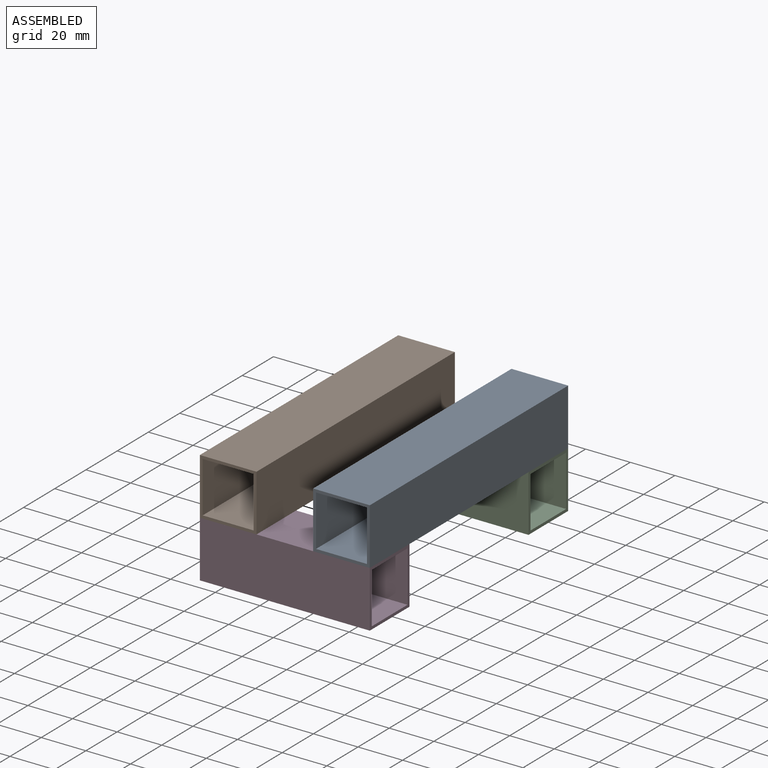
[diagram: assembled view]
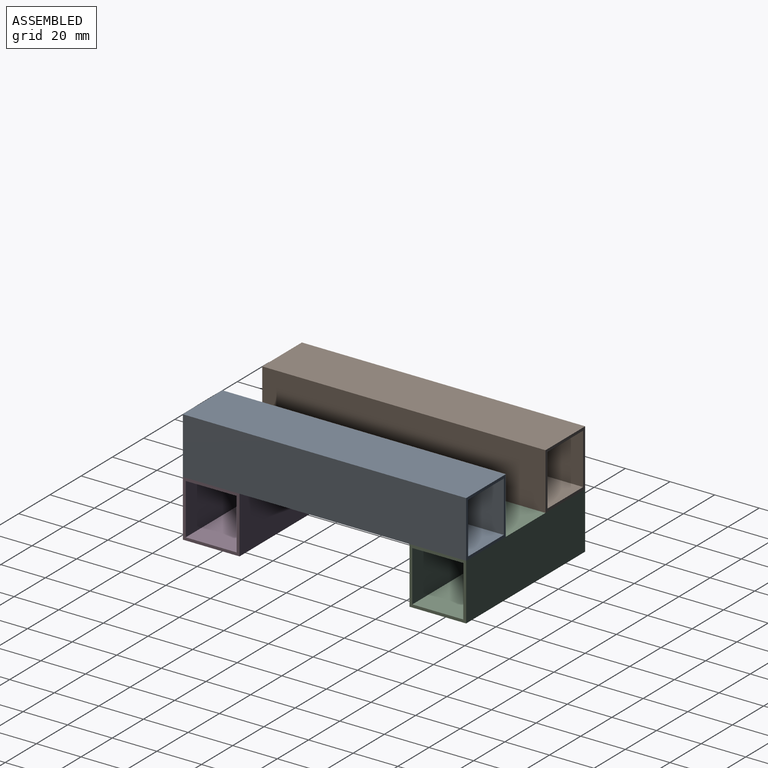
[diagram: assembled view, second angle]
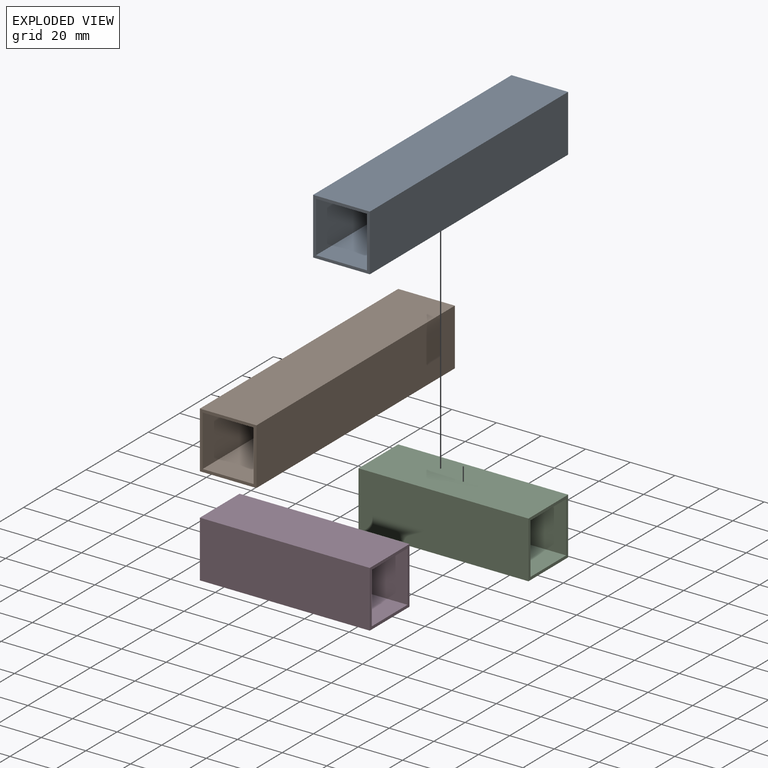
[diagram: exploded view]
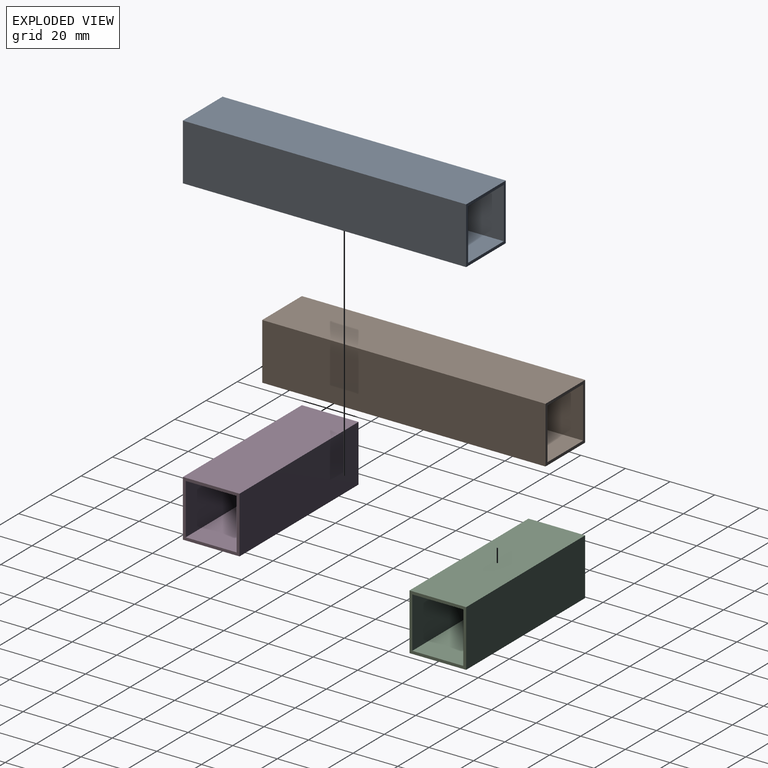
[diagram: exploded view, second angle]
ASSEMBLY  parts=4 mates=3
PART A: 10 faces, bbox 25.4x127x25.4 mm
  f0: plane 127x22.86mm, normal (0,0,1), area 2903.2mm2, adj f1,f7,f8,f9
  f1: plane 127x22.86mm, normal (1,0,0), area 2903.2mm2, adj f0,f2,f8,f9
  f2: plane 127x22.86mm, normal (0,0,-1), area 2903.2mm2, adj f1,f7,f8,f9
  f3: plane 127x25.4mm, normal (-1,0,0), area 3225.8mm2, adj f4,f6,f8,f9
  f4: plane 127x25.4mm, normal (0,0,-1), area 3225.8mm2, adj f3,f5,f8,f9
  f5: plane 127x25.4mm, normal (1,0,0), area 3225.8mm2, adj f4,f6,f8,f9
  f6: plane 127x25.4mm, normal (0,0,1), area 3225.8mm2, adj f3,f5,f8,f9
  f7: plane 127x22.86mm, normal (-1,0,0), area 2903.2mm2, adj f0,f2,f8,f9
  f8: plane 25.4x25.4mm, normal (0,-1,0), area 122.6mm2, adj f0,f1,f2,f3,f4,f5,f6,f7
  f9: plane 25.4x25.4mm, normal (0,1,0), area 122.6mm2, adj f0,f1,f2,f3,f4,f5,f6,f7
PART B: 10 faces, bbox 25.4x127x25.4 mm
  f0: plane 127x22.86mm, normal (0,0,1), area 2903.2mm2, adj f1,f7,f8,f9
  f1: plane 127x22.86mm, normal (1,0,0), area 2903.2mm2, adj f0,f2,f8,f9
  f2: plane 127x22.86mm, normal (0,0,-1), area 2903.2mm2, adj f1,f7,f8,f9
  f3: plane 127x25.4mm, normal (-1,0,0), area 3225.8mm2, adj f4,f6,f8,f9
  f4: plane 127x25.4mm, normal (0,0,-1), area 3225.8mm2, adj f3,f5,f8,f9
  f5: plane 127x25.4mm, normal (1,0,0), area 3225.8mm2, adj f4,f6,f8,f9
  f6: plane 127x25.4mm, normal (0,0,1), area 3225.8mm2, adj f3,f5,f8,f9
  f7: plane 127x22.86mm, normal (-1,0,0), area 2903.2mm2, adj f0,f2,f8,f9
  f8: plane 25.4x25.4mm, normal (0,-1,0), area 122.6mm2, adj f0,f1,f2,f3,f4,f5,f6,f7
  f9: plane 25.4x25.4mm, normal (0,1,0), area 122.6mm2, adj f0,f1,f2,f3,f4,f5,f6,f7
PART C: 10 faces, bbox 76.2x25.4x25.4 mm
  f0: plane 76.2x22.86mm, normal (0,1,0), area 1741.9mm2, adj f1,f7,f8,f9
  f1: plane 76.2x22.86mm, normal (0,0,-1), area 1741.9mm2, adj f0,f2,f8,f9
  f2: plane 76.2x22.86mm, normal (0,-1,0), area 1741.9mm2, adj f1,f7,f8,f9
  f3: plane 76.2x25.4mm, normal (0,1,0), area 1935.5mm2, adj f4,f6,f8,f9
  f4: plane 76.2x25.4mm, normal (0,0,1), area 1935.5mm2, adj f3,f5,f8,f9
  f5: plane 76.2x25.4mm, normal (0,-1,0), area 1935.5mm2, adj f4,f6,f8,f9
  f6: plane 76.2x25.4mm, normal (0,0,-1), area 1935.5mm2, adj f3,f5,f8,f9
  f7: plane 76.2x22.86mm, normal (0,0,1), area 1741.9mm2, adj f0,f2,f8,f9
  f8: plane 25.4x25.4mm, normal (1,0,0), area 122.6mm2, adj f0,f1,f2,f3,f4,f5,f6,f7
  f9: plane 25.4x25.4mm, normal (-1,0,0), area 122.6mm2, adj f0,f1,f2,f3,f4,f5,f6,f7
PART D: 10 faces, bbox 76.2x25.4x25.4 mm
  f0: plane 76.2x25.4mm, normal (0,0,1), area 1935.5mm2, adj f1,f7,f8,f9
  f1: plane 76.2x25.4mm, normal (0,-1,0), area 1935.5mm2, adj f0,f2,f8,f9
  f2: plane 76.2x25.4mm, normal (0,0,-1), area 1935.5mm2, adj f1,f7,f8,f9
  f3: plane 76.2x22.86mm, normal (0,1,0), area 1741.9mm2, adj f4,f6,f8,f9
  f4: plane 76.2x22.86mm, normal (0,0,-1), area 1741.9mm2, adj f3,f5,f8,f9
  f5: plane 76.2x22.86mm, normal (0,-1,0), area 1741.9mm2, adj f4,f6,f8,f9
  f6: plane 76.2x22.86mm, normal (0,0,1), area 1741.9mm2, adj f3,f5,f8,f9
  f7: plane 76.2x25.4mm, normal (0,1,0), area 1935.5mm2, adj f0,f2,f8,f9
  f8: plane 25.4x25.4mm, normal (1,0,0), area 122.6mm2, adj f0,f1,f2,f3,f4,f5,f6,f7
  f9: plane 25.4x25.4mm, normal (-1,0,0), area 122.6mm2, adj f0,f1,f2,f3,f4,f5,f6,f7
PLACE A t=(0,0,-3.66)mm
PLACE B t=(0,0,-3.66)mm
PLACE C t=(0,0,-3.66)mm
PLACE D t=(0,0,-3.66)mm
MATE fastened A.f4 <-> D.f0  axis (0,0,-1) through (76.2,-127,-3.66)mm
MATE fastened B.f4 <-> D.f0  axis (0,0,-1) through (0,-127,-3.66)mm
MATE fastened B.f4 <-> C.f4  axis (0,0,-1) through (0,0,-3.66)mm
